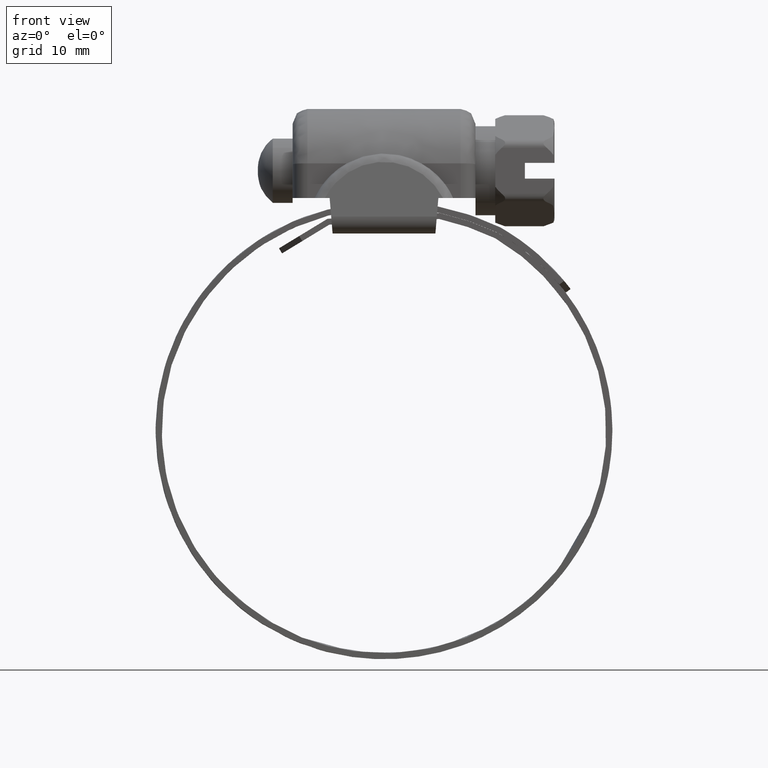
[diagram: clean part render]
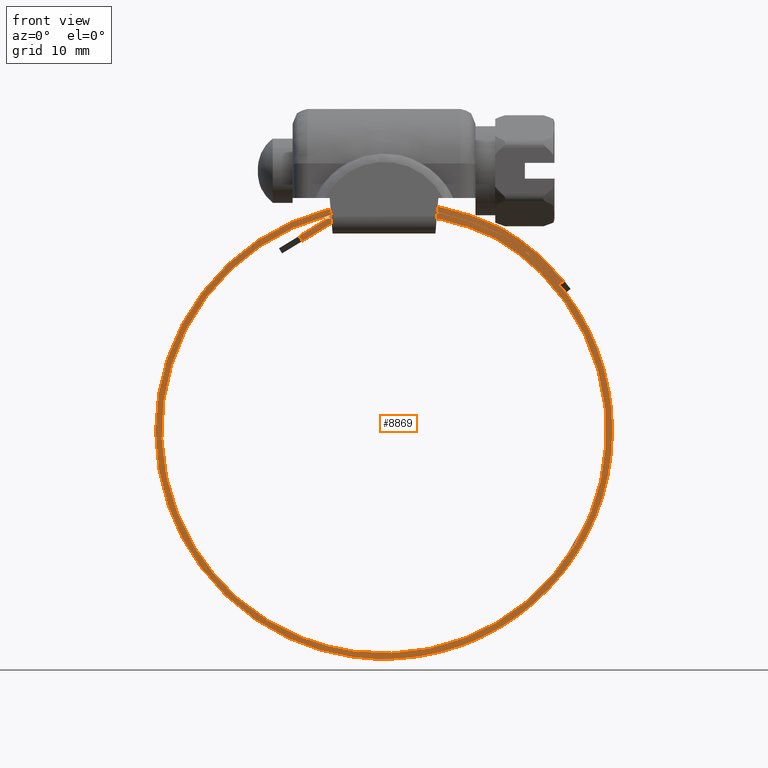
[diagram: same view with one face highlighted and labeled with its STEP entity id]
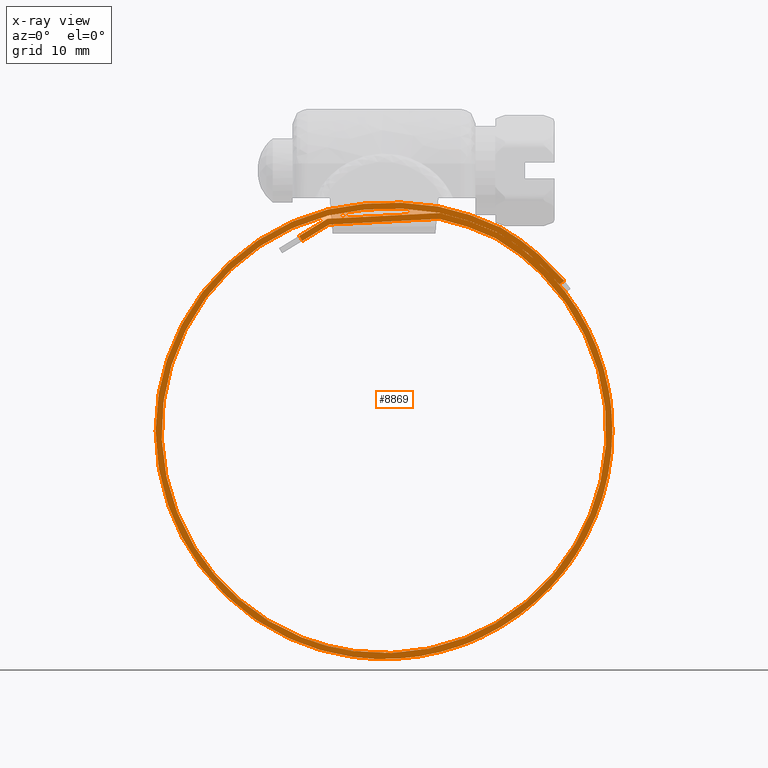
[diagram: x-ray of the same camera — body ghosted, the highlighted face saturated]
A machine part, front view. The second image highlights one B-rep face of the part: STEP entity #8869.
The next image is the same camera in x-ray: the body ghosted, the highlighted face saturated — about 0% of this face is hidden behind the body in this view.
In plain terms, the highlighted face is a freeform B-spline surface patch.
Its self-contained STEP definition (entity closure, byte-faithful):
#7183=CARTESIAN_POINT('',(-8.575713304426769,-6.499999999999821,9.227431194557898));
#7184=VERTEX_POINT('',#7183);
#7197=CARTESIAN_POINT('',(-8.263998013388409,-6.499999999999770,8.714758221471870));
#7198=VERTEX_POINT('',#7197);
#7204=CARTESIAN_POINT('',(-8.575713304426769,-6.499999999999821,9.227431194557898));
#7205=CARTESIAN_POINT('',(-8.263998013388409,-6.499999999999770,8.714758221471870));
#7206=QUASI_UNIFORM_CURVE('',1,(#7204,#7205),.UNSPECIFIED.,.F.,.U.);
#7207=EDGE_CURVE('',#7184,#7198,#7206,.T.);
#7238=CARTESIAN_POINT('',(-5.622523485148539,-6.499999999999840,11.302318436468919));
#7239=VERTEX_POINT('',#7238);
#7240=CARTESIAN_POINT('',(-3.039782627529023,-6.499999999999840,-32.778055056171148));
#7241=VERTEX_POINT('',#7240);
#7242=CARTESIAN_POINT('',(-5.622523485148539,-6.499999999999840,11.302318436468919));
#7243=CARTESIAN_POINT('',(-6.677032513801450,-6.499999999999853,11.030237351820640));
#7244=CARTESIAN_POINT('',(-8.516461340754061,-6.499999999999806,10.410001057006960));
#7245=CARTESIAN_POINT('',(-11.057657541828149,-6.499999999999904,9.169161250690676));
#7246=CARTESIAN_POINT('',(-13.405105348841641,-6.499999999999753,7.665009101022365));
#7247=CARTESIAN_POINT('',(-15.509925792639340,-6.500000000000044,5.895971794613858));
#7248=CARTESIAN_POINT('',(-17.213630698843591,-6.499999999999549,4.060376419060607));
#7249=CARTESIAN_POINT('',(-18.682259183548229,-6.500000000000054,2.133999013549105));
#7250=CARTESIAN_POINT('',(-19.916110606873939,-6.500000000000117,0.093274970699544));
#7251=CARTESIAN_POINT('',(-20.989351815635700,-6.499999999999194,-2.258205123547798));
#7252=CARTESIAN_POINT('',(-21.867930987184710,-6.500000000000211,-4.903706510145476));
#7253=CARTESIAN_POINT('',(-22.414617808876020,-6.499999999999687,-7.806094357712510));
#7254=CARTESIAN_POINT('',(-22.547473008275531,-6.499999999999917,-10.672285842825019));
#7255=CARTESIAN_POINT('',(-22.386215658596829,-6.499999999999753,-13.090163321110399));
#7256=CARTESIAN_POINT('',(-21.965660915622689,-6.499999999999989,-15.599247137691000));
#7257=CARTESIAN_POINT('',(-21.216902669099451,-6.499999999999726,-18.160684447832210));
#7258=CARTESIAN_POINT('',(-19.950605268386472,-6.499999999999845,-21.046771313225388));
#7259=CARTESIAN_POINT('',(-18.419579445822428,-6.500000000000224,-23.525661730775159));
#7260=CARTESIAN_POINT('',(-16.727124991773671,-6.499999999999677,-25.585533152284590));
#7261=CARTESIAN_POINT('',(-14.873154439189060,-6.499999999999976,-27.442766663469381));
#7262=CARTESIAN_POINT('',(-12.645000242532390,-6.499999999999702,-29.190857019091229));
#7263=CARTESIAN_POINT('',(-9.943646720583901,-6.499999999999925,-30.737619319368331));
#7264=CARTESIAN_POINT('',(-6.805181591407070,-6.499999999999882,-32.031293810275102));
#7265=CARTESIAN_POINT('',(-4.478564566545557,-6.499999999999658,-32.582060493662382));
#7266=CARTESIAN_POINT('',(-3.039782627529023,-6.499999999999840,-32.778055056171148));
#7267=B_SPLINE_CURVE_WITH_KNOTS('',3,(#7242,#7243,#7244,#7245,#7246,#7247,#7248,#7249,#7250,#7251,#7252,#7253,#7254,#7255,#7256,#7257,#7258,#7259,#7260,#7261,#7262,#7263,#7264,#7265,#7266),.UNSPECIFIED.,.F.,.U.,(4,1,1,1,1,1,1,1,1,1,1,1,1,1,1,1,1,1,1,1,1,1,4),(0.000000031237683,3.267128337247414,5.808241923026941,8.470378931677445,11.616526356170240,14.036635826504750,15.972725081762210,18.876864785380800,21.175972311528241,23.717081927646380,27.226262769219751,30.009382928249380,32.308436374567592,34.486539733852510,37.632702350337532,40.294818435498136,43.924990276692057,46.345100261986218,48.281189111711853,51.790361674717083,54.815486454609037,57.598636460188096,61.954807041272758),.UNSPECIFIED.);
#7268=EDGE_CURVE('',#7239,#7241,#7267,.T.);
#7270=CARTESIAN_POINT('',(11.250000000000000,-6.499999999999840,9.001748558090050));
#7271=VERTEX_POINT('',#7270);
#7272=CARTESIAN_POINT('',(-3.039782627529023,-6.499999999999840,-32.778055056171148));
#7273=CARTESIAN_POINT('',(-1.760907654901265,-6.499999999999841,-32.952535993591738));
#7274=CARTESIAN_POINT('',(0.624759685584840,-6.499999999999841,-33.070477979452107));
#7275=CARTESIAN_POINT('',(3.840812692171333,-6.499999999999844,-32.717918517205433));
#7276=CARTESIAN_POINT('',(6.745941477448763,-6.499999999999821,-32.012371997404657));
#7277=CARTESIAN_POINT('',(9.276887977891771,-6.499999999999880,-31.046278971266901));
#7278=CARTESIAN_POINT('',(11.773951177307520,-6.499999999999787,-29.719727303606501));
#7279=CARTESIAN_POINT('',(13.699956271735600,-6.499999999999759,-28.383201858799069));
#7280=CARTESIAN_POINT('',(15.599716529888941,-6.499999999999819,-26.754172536777130));
#7281=CARTESIAN_POINT('',(17.047364668472571,-6.499999999999814,-25.230418198895631));
#7282=CARTESIAN_POINT('',(18.502971627993631,-6.499999999999726,-23.345585738177089));
#7283=CARTESIAN_POINT('',(19.517183825823931,-6.499999999999890,-21.740372352101499));
#7284=CARTESIAN_POINT('',(20.494917399358140,-6.499999999999882,-19.838047325630100));
#7285=CARTESIAN_POINT('',(21.199117479826860,-6.499999999999726,-18.118579599610449));
#7286=CARTESIAN_POINT('',(21.813935635679211,-6.499999999999860,-16.111743457262030));
#7287=CARTESIAN_POINT('',(22.271172768493742,-6.499999999999837,-13.979581841052660));
#7288=CARTESIAN_POINT('',(22.547194467166591,-6.499999999999844,-11.327118168138011));
#7289=CARTESIAN_POINT('',(22.470245967628092,-6.499999999999844,-8.295556429817843));
#7290=CARTESIAN_POINT('',(21.976824576867529,-6.499999999999838,-5.384842818715946));
#7291=CARTESIAN_POINT('',(21.168365702489609,-6.499999999999844,-2.717512551896015));
#7292=CARTESIAN_POINT('',(20.288179273643070,-6.499999999999837,-0.676930178039158));
#7293=CARTESIAN_POINT('',(19.240727521171319,-6.499999999999835,1.234289611740506));
#7294=CARTESIAN_POINT('',(18.009711126329520,-6.499999999999865,3.083315183625002));
#7295=CARTESIAN_POINT('',(16.186633764136410,-6.499999999999723,5.246390425627837));
#7296=CARTESIAN_POINT('',(13.902685987887899,-6.500000000000127,7.304070892240435));
#7297=CARTESIAN_POINT('',(12.123293531093880,-6.499999999999642,8.497593529294429));
#7298=CARTESIAN_POINT('',(11.250000000000000,-6.499999999999840,9.001748558090050));
#7299=B_SPLINE_CURVE_WITH_KNOTS('',3,(#7272,#7273,#7274,#7275,#7276,#7277,#7278,#7279,#7280,#7281,#7282,#7283,#7284,#7285,#7286,#7287,#7288,#7289,#7290,#7291,#7292,#7293,#7294,#7295,#7296,#7297,#7298),.UNSPECIFIED.,.F.,.U.,(4,1,1,1,1,1,1,1,1,1,1,1,1,1,1,1,1,1,1,1,1,1,1,1,4),(0.000000031051549,3.872150796626499,7.139309935755733,9.680431380178909,12.826580892101740,15.246691656052439,18.150831119538822,19.844908388069101,22.749051464708479,24.443115895075859,26.984235628273940,28.436315471595329,30.856410472156139,32.550440920749793,34.728566896575522,37.390672411195908,40.536819975446043,43.803980263052701,46.224094333753008,48.886216223948573,50.459298152798169,52.758394654139970,55.541518911314178,58.929687628137778,61.954807041273028),.UNSPECIFIED.);
#7300=EDGE_CURVE('',#7241,#7271,#7299,.T.);
#7489=CARTESIAN_POINT('',(5.587154204157729,-6.499999999999840,10.948625041578239));
#7490=VERTEX_POINT('',#7489);
#7491=CARTESIAN_POINT('',(11.250000000000000,-6.499999999999840,9.001748558090050));
#7492=CARTESIAN_POINT('',(10.489022128092980,-6.499999999999860,9.366734217866396));
#7493=CARTESIAN_POINT('',(8.642814593679995,-6.499999999999805,10.143462471539340));
#7494=CARTESIAN_POINT('',(6.717086143060210,-6.499999999999884,10.701840961784150));
#7495=CARTESIAN_POINT('',(5.587154204157729,-6.499999999999840,10.948625041578239));
#7496=B_SPLINE_CURVE_WITH_KNOTS('',3,(#7491,#7492,#7493,#7494,#7495),.UNSPECIFIED.,.F.,.U.,(4,1,4),(4.672973E-010,2.531940920450484,6.001637033685481),.UNSPECIFIED.);
#7497=EDGE_CURVE('',#7271,#7490,#7496,.T.);
#7523=CARTESIAN_POINT('',(-5.529999905731620,-6.499999999999840,10.377083057317220));
#7524=VERTEX_POINT('',#7523);
#7525=CARTESIAN_POINT('',(-5.529999905731620,-6.499999999999840,10.377083057317220));
#7526=CARTESIAN_POINT('',(5.587154204157729,-6.499999999999840,10.948625041578239));
#7527=QUASI_UNIFORM_CURVE('',1,(#7525,#7526),.UNSPECIFIED.,.F.,.U.);
#7528=EDGE_CURVE('',#7524,#7490,#7527,.T.);
#7563=CARTESIAN_POINT('',(-8.263998013388409,-6.499999999999770,8.714758221471870));
#7564=CARTESIAN_POINT('',(-5.529999905731620,-6.499999999999840,10.377083057317220));
#7565=QUASI_UNIFORM_CURVE('',1,(#7563,#7564),.UNSPECIFIED.,.F.,.U.);
#7566=EDGE_CURVE('',#7198,#7524,#7565,.T.);
#7603=CARTESIAN_POINT('',(-5.712191785269829,-6.499999999999840,10.968508822205539));
#7604=VERTEX_POINT('',#7603);
#7605=CARTESIAN_POINT('',(-5.712191785269829,-6.499999999999840,10.968508822205539));
#7606=CARTESIAN_POINT('',(-8.575713304426769,-6.499999999999821,9.227431194557898));
#7607=QUASI_UNIFORM_CURVE('',1,(#7605,#7606),.UNSPECIFIED.,.F.,.U.);
#7608=EDGE_CURVE('',#7604,#7184,#7607,.T.);
#7623=CARTESIAN_POINT('',(5.636181117751979,-6.499999999999840,11.551937953709359));
#7624=VERTEX_POINT('',#7623);
#7625=CARTESIAN_POINT('',(5.636181117751979,-6.499999999999840,11.551937953709359));
#7626=CARTESIAN_POINT('',(-5.712191785269829,-6.499999999999840,10.968508822205539));
#7627=QUASI_UNIFORM_CURVE('',1,(#7625,#7626),.UNSPECIFIED.,.F.,.U.);
#7628=EDGE_CURVE('',#7624,#7604,#7627,.T.);
#7660=CARTESIAN_POINT('',(11.530119279132240,-6.499999999999840,9.532828618046372));
#7661=VERTEX_POINT('',#7660);
#7662=CARTESIAN_POINT('',(11.530119279132240,-6.499999999999840,9.532828618046372));
#7663=CARTESIAN_POINT('',(10.650715267917960,-6.499999999999846,9.955562160979552));
#7664=CARTESIAN_POINT('',(8.724684167802803,-6.499999999999835,10.753418436172121));
#7665=CARTESIAN_POINT('',(6.717258319638925,-6.499999999999838,11.319274903314280));
#7666=CARTESIAN_POINT('',(5.636181117751979,-6.499999999999840,11.551937953709359));
#7667=B_SPLINE_CURVE_WITH_KNOTS('',3,(#7662,#7663,#7664,#7665,#7666),.UNSPECIFIED.,.F.,.U.,(4,1,4),(4.604441E-010,2.927198591488921,6.244685655434751),.UNSPECIFIED.);
#7668=EDGE_CURVE('',#7661,#7624,#7667,.T.);
#7715=CARTESIAN_POINT('',(-3.155262802816941,-6.499999999999840,-33.367834676289327));
#7716=VERTEX_POINT('',#7715);
#7717=CARTESIAN_POINT('',(-3.155262802816941,-6.499999999999840,-33.367834676289327));
#7718=CARTESIAN_POINT('',(-1.759245071911273,-6.499999999999854,-33.560460656890733));
#7719=CARTESIAN_POINT('',(0.361263710715695,-6.499999999999806,-33.656815460123518));
#7720=CARTESIAN_POINT('',(3.294781582754527,-6.499999999999874,-33.386847717958773));
#7721=CARTESIAN_POINT('',(5.332326301137863,-6.499999999999800,-32.992171227446178));
#7722=CARTESIAN_POINT('',(7.564317121857537,-6.499999999999842,-32.350002751599952));
#7723=CARTESIAN_POINT('',(9.687910965450813,-6.499999999999891,-31.509091501191200));
#7724=CARTESIAN_POINT('',(12.068049752289200,-6.499999999999751,-30.239296404402999));
#7725=CARTESIAN_POINT('',(14.085909833159491,-6.499999999999814,-28.849544113123290));
#7726=CARTESIAN_POINT('',(15.941129340528180,-6.499999999999967,-27.252382410612238));
#7727=CARTESIAN_POINT('',(17.777073653342470,-6.499999999999440,-25.332866251625230));
#7728=CARTESIAN_POINT('',(19.383257412882891,-6.499999999999977,-23.160345589817361));
#7729=CARTESIAN_POINT('',(20.930629900246821,-6.499999999999668,-20.412269400786531));
#7730=CARTESIAN_POINT('',(21.989028131654020,-6.500000000000165,-17.790172188562082));
#7731=CARTESIAN_POINT('',(22.674466344574729,-6.499999999999727,-15.094911742499230));
#7732=CARTESIAN_POINT('',(23.070000767285979,-6.499999999999903,-12.469057782847139));
#7733=CARTESIAN_POINT('',(23.156479192951711,-6.499999999999796,-9.686027563272926));
#7734=CARTESIAN_POINT('',(22.860360401847579,-6.499999999999911,-6.835948681753953));
#7735=CARTESIAN_POINT('',(22.209481009553802,-6.499999999999612,-3.876989839399466));
#7736=CARTESIAN_POINT('',(21.150856854793769,-6.499999999999937,-0.986919240063807));
#7737=CARTESIAN_POINT('',(19.659641752438269,-6.499999999999822,1.748088866420719));
#7738=CARTESIAN_POINT('',(17.953122011074331,-6.499999999999829,4.150832370738392));
#7739=CARTESIAN_POINT('',(15.954752127349890,-6.499999999999901,6.321682562593418));
#7740=CARTESIAN_POINT('',(13.711372370465289,-6.499999999999758,8.171127112763230));
#7741=CARTESIAN_POINT('',(12.212520447768370,-6.499999999999610,9.139762298229867));
#7742=CARTESIAN_POINT('',(11.530119279132240,-6.499999999999840,9.532828618046372));
#7743=B_SPLINE_CURVE_WITH_KNOTS('',3,(#7717,#7718,#7719,#7720,#7721,#7722,#7723,#7724,#7725,#7726,#7727,#7728,#7729,#7730,#7731,#7732,#7733,#7734,#7735,#7736,#7737,#7738,#7739,#7740,#7741,#7742),.UNSPECIFIED.,.F.,.U.,(4,1,1,1,1,1,1,1,1,1,1,1,1,1,1,1,1,1,1,1,1,1,1,4),(0.000000027463919,4.227702324445673,6.341570707915167,8.828474037335347,10.444962280792740,13.304907404697429,15.667462089607090,18.527402931297200,20.641271395956881,23.003819768591239,26.485489152094811,28.723711427680058,32.453992357183637,34.940910488610477,37.054767669646687,40.412088749180228,43.272034386468860,45.634585280746542,49.489287218801010,52.473575595363030,54.960464225905227,58.317786431931950,61.302070922625809,63.664606057474693),.UNSPECIFIED.);
#7744=EDGE_CURVE('',#7716,#7661,#7743,.T.);
#7746=CARTESIAN_POINT('',(-5.682911846103689,-6.499999999999840,11.906201461037179));
#7747=VERTEX_POINT('',#7746);
#7748=CARTESIAN_POINT('',(-5.682911846103689,-6.499999999999840,11.906201461037179));
#7749=CARTESIAN_POINT('',(-6.566746769196429,-6.499999999999838,11.681901511872701));
#7750=CARTESIAN_POINT('',(-8.268232536073279,-6.499999999999842,11.140999912899980));
#7751=CARTESIAN_POINT('',(-10.425499836428310,-6.499999999999839,10.168548407124939));
#7752=CARTESIAN_POINT('',(-12.660153539837500,-6.499999999999836,8.895908517823976));
#7753=CARTESIAN_POINT('',(-14.610549735141980,-6.499999999999859,7.479668005194490));
#7754=CARTESIAN_POINT('',(-16.529405610153031,-6.499999999999844,5.704584907141630));
#7755=CARTESIAN_POINT('',(-18.268076257384241,-6.499999999999838,3.751766886388677));
#7756=CARTESIAN_POINT('',(-19.919352430973870,-6.499999999999843,1.356799901250281));
#7757=CARTESIAN_POINT('',(-21.338696543304032,-6.499999999999841,-1.462765753459126));
#7758=CARTESIAN_POINT('',(-22.238748360750979,-6.499999999999837,-4.052608859491872));
#7759=CARTESIAN_POINT('',(-22.904067931853799,-6.499999999999841,-7.007536872009760));
#7760=CARTESIAN_POINT('',(-23.187625812309459,-6.499999999999838,-10.072276922416970));
#7761=CARTESIAN_POINT('',(-22.981872709856880,-6.499999999999846,-13.431517817599770));
#7762=CARTESIAN_POINT('',(-22.359907005182912,-6.499999999999830,-16.568633691514052));
#7763=CARTESIAN_POINT('',(-21.381873390875690,-6.499999999999867,-19.396447408117020));
#7764=CARTESIAN_POINT('',(-20.197097769768490,-6.499999999999787,-21.774604425692491));
#7765=CARTESIAN_POINT('',(-18.871173541309268,-6.500000000000028,-23.881277822381779));
#7766=CARTESIAN_POINT('',(-17.433016409846090,-6.499999999999774,-25.708815711521449));
#7767=CARTESIAN_POINT('',(-15.460076317757460,-6.499999999999881,-27.725763020799839));
#7768=CARTESIAN_POINT('',(-13.221514468512590,-6.499999999999790,-29.518693914433719));
#7769=CARTESIAN_POINT('',(-10.613647284388151,-6.499999999999899,-31.065429438276080));
#7770=CARTESIAN_POINT('',(-8.295423998168849,-6.499999999999829,-32.084667323370589));
#7771=CARTESIAN_POINT('',(-5.849532242256912,-6.499999999999510,-32.880709733427182));
#7772=CARTESIAN_POINT('',(-4.181756314425158,-6.500000000000531,-33.226344674859583));
#7773=CARTESIAN_POINT('',(-3.155262802816941,-6.499999999999840,-33.367834676289327));
#7774=B_SPLINE_CURVE_WITH_KNOTS('',3,(#7748,#7749,#7750,#7751,#7752,#7753,#7754,#7755,#7756,#7757,#7758,#7759,#7760,#7761,#7762,#7763,#7764,#7765,#7766,#7767,#7768,#7769,#7770,#7771,#7772,#7773),.UNSPECIFIED.,.F.,.U.,(4,1,1,1,1,1,1,1,1,1,1,1,1,1,1,1,1,1,1,1,1,1,1,4),(0.000000027636922,2.735556926833745,5.346808181553676,7.087645648249605,10.444962280794099,12.558833874154850,14.921390622836309,18.278711858003479,21.262999263188998,24.371627469004419,26.485489151828400,30.340173108331051,33.573098304674573,36.557385590591323,39.914719210689022,42.525960002505641,44.515480910578823,47.375420046152954,49.489287218156583,52.970952922141812,55.955237713755551,58.566490662282973,60.556014050288432,63.664606056605606),.UNSPECIFIED.);
#7775=EDGE_CURVE('',#7747,#7716,#7774,.T.);
#8560=CARTESIAN_POINT('',(17.740673625830549,-6.499999999999840,4.326425836708835));
#8561=VERTEX_POINT('',#8560);
#8568=CARTESIAN_POINT('',(18.221242858220950,-6.499999999999840,4.686983431351290));
#8569=VERTEX_POINT('',#8568);
#8575=CARTESIAN_POINT('',(18.221242858220950,-6.499999999999840,4.686983431351290));
#8576=CARTESIAN_POINT('',(17.740673625830549,-6.499999999999840,4.326425836708835));
#8577=QUASI_UNIFORM_CURVE('',1,(#8575,#8576),.UNSPECIFIED.,.F.,.U.);
#8578=EDGE_CURVE('',#8569,#8561,#8577,.T.);
#8791=CARTESIAN_POINT('',(-25.391328110707569,-6.499999999999799,14.916847837339240));
#8792=CARTESIAN_POINT('',(25.390009469051328,-6.499999999999799,14.916847837339240));
#8793=CARTESIAN_POINT('',(-25.391328110707569,-6.499999999999799,-35.867040584132553));
#8794=CARTESIAN_POINT('',(25.390009469051328,-6.499999999999799,-35.867040584132553));
#8795=B_SPLINE_SURFACE_WITH_KNOTS('',1,1,((#8791,#8793),(#8792,#8794)),.UNSPECIFIED.,.F.,.F.,.U.,(2,2),(2,2),(0.0,50.781337579758898),(0.0,50.783888421471787),.UNSPECIFIED.);
#8796=ORIENTED_EDGE('',*,*,#7608,.T.);
#8797=ORIENTED_EDGE('',*,*,#7207,.T.);
#8798=ORIENTED_EDGE('',*,*,#7566,.T.);
#8799=ORIENTED_EDGE('',*,*,#7528,.T.);
#8800=ORIENTED_EDGE('',*,*,#7497,.F.);
#8801=ORIENTED_EDGE('',*,*,#7300,.F.);
#8802=ORIENTED_EDGE('',*,*,#7268,.F.);
#8803=CARTESIAN_POINT('',(5.648248449040190,-6.499999999999840,11.559567490402561));
#8804=VERTEX_POINT('',#8803);
#8805=CARTESIAN_POINT('',(5.648248449040190,-6.499999999999840,11.559567490402561));
#8806=CARTESIAN_POINT('',(4.135828598999001,-6.499999999999867,11.833991270554110));
#8807=CARTESIAN_POINT('',(1.744752866072126,-6.499999999999806,12.067099081853920));
#8808=CARTESIAN_POINT('',(-2.041084647441291,-6.499999999999873,11.950734591259421));
#8809=CARTESIAN_POINT('',(-4.268268905256776,-6.499999999999747,11.612450247022590));
#8810=CARTESIAN_POINT('',(-5.622523485148539,-6.499999999999840,11.302318436468919));
#8811=B_SPLINE_CURVE_WITH_KNOTS('',3,(#8805,#8806,#8807,#8808,#8809,#8810),.UNSPECIFIED.,.F.,.U.,(4,1,1,4),(1.311648E-009,4.611320388713295,7.183012174036367,11.350933451449031),.UNSPECIFIED.);
#8812=EDGE_CURVE('',#8804,#7239,#8811,.T.);
#8813=ORIENTED_EDGE('',*,*,#8812,.F.);
#8814=CARTESIAN_POINT('',(11.534787568611300,-6.499999999999840,9.541679945752271));
#8815=VERTEX_POINT('',#8814);
#8816=CARTESIAN_POINT('',(11.534787568611300,-6.499999999999840,9.541679945752271));
#8817=CARTESIAN_POINT('',(10.802827192343960,-6.499999999999829,9.893536437489994));
#8818=CARTESIAN_POINT('',(8.887511842089905,-6.499999999999856,10.707968489300191));
#8819=CARTESIAN_POINT('',(6.886730952510479,-6.499999999999829,11.292551027367770));
#8820=CARTESIAN_POINT('',(5.648248449040190,-6.499999999999840,11.559567490402561));
#8821=B_SPLINE_CURVE_WITH_KNOTS('',3,(#8816,#8817,#8818,#8819,#8820),.UNSPECIFIED.,.F.,.U.,(4,1,4),(4.568328E-010,2.436418763886612,6.237227370507423),.UNSPECIFIED.);
#8822=EDGE_CURVE('',#8815,#8804,#8821,.T.);
#8823=ORIENTED_EDGE('',*,*,#8822,.F.);
#8824=CARTESIAN_POINT('',(17.740673625830549,-6.499999999999840,4.326425836708835));
#8825=CARTESIAN_POINT('',(16.951985710854821,-6.499999999999845,5.271271611033150));
#8826=CARTESIAN_POINT('',(15.044310681613300,-6.499999999999838,7.216891996471374));
#8827=CARTESIAN_POINT('',(12.822023342294480,-6.499999999999854,8.800434194578781));
#8828=CARTESIAN_POINT('',(11.534787568611300,-6.499999999999840,9.541679945752271));
#8829=B_SPLINE_CURVE_WITH_KNOTS('',3,(#8824,#8825,#8826,#8827,#8828),.UNSPECIFIED.,.F.,.U.,(4,1,4),(1.029704E-009,3.692266704487778,8.148440953545260),.UNSPECIFIED.);
#8830=EDGE_CURVE('',#8561,#8815,#8829,.T.);
#8831=ORIENTED_EDGE('',*,*,#8830,.F.);
#8832=ORIENTED_EDGE('',*,*,#8578,.F.);
#8833=CARTESIAN_POINT('',(11.814864077368000,-6.499999999999840,10.072759229565220));
#8834=VERTEX_POINT('',#8833);
#8835=CARTESIAN_POINT('',(18.221242858220950,-6.499999999999840,4.686983431351290));
#8836=CARTESIAN_POINT('',(17.464248002367889,-6.499999999999817,5.596286240981554));
#8837=CARTESIAN_POINT('',(16.088782676151350,-6.499999999999877,7.016993411993418));
#8838=CARTESIAN_POINT('',(13.899846662055101,-6.499999999999817,8.775828859264625));
#8839=CARTESIAN_POINT('',(12.536733066400030,-6.499999999999869,9.657890812016005));
#8840=CARTESIAN_POINT('',(11.814864077368000,-6.499999999999840,10.072759229565220));
#8841=B_SPLINE_CURVE_WITH_KNOTS('',3,(#8835,#8836,#8837,#8838,#8839,#8840),.UNSPECIFIED.,.F.,.U.,(4,1,1,4),(8.784333E-010,3.549477470405221,5.915789237519681,8.413568198443604),.UNSPECIFIED.);
#8842=EDGE_CURVE('',#8569,#8834,#8841,.T.);
#8843=ORIENTED_EDGE('',*,*,#8842,.T.);
#8844=CARTESIAN_POINT('',(5.474209029354239,-6.499999999999840,12.209111048944139));
#8845=VERTEX_POINT('',#8844);
#8846=CARTESIAN_POINT('',(11.814864077368000,-6.499999999999840,10.072759229565220));
#8847=CARTESIAN_POINT('',(10.839117760276350,-6.499999999999856,10.542826396797549));
#8848=CARTESIAN_POINT('',(8.766309684500760,-6.499999999999809,11.392094511795280));
#8849=CARTESIAN_POINT('',(6.603937614784102,-6.499999999999861,11.978903842732411));
#8850=CARTESIAN_POINT('',(5.474209029354239,-6.499999999999840,12.209111048944139));
#8851=B_SPLINE_CURVE_WITH_KNOTS('',3,(#8846,#8847,#8848,#8849,#8850),.UNSPECIFIED.,.F.,.U.,(4,1,4),(5.292149E-010,3.249211913700887,6.708043967328729),.UNSPECIFIED.);
#8852=EDGE_CURVE('',#8834,#8845,#8851,.T.);
#8853=ORIENTED_EDGE('',*,*,#8852,.T.);
#8854=CARTESIAN_POINT('',(5.474209029354239,-6.499999999999840,12.209111048944139));
#8855=CARTESIAN_POINT('',(3.801316014099452,-6.499999999999847,12.490702685972710));
#8856=CARTESIAN_POINT('',(1.401165061370979,-6.499999999999867,12.680065534122379));
#8857=CARTESIAN_POINT('',(-2.341275396359274,-6.499999999999775,12.510354921375550));
#8858=CARTESIAN_POINT('',(-4.370197716830248,-6.499999999999885,12.201113113550379));
#8859=CARTESIAN_POINT('',(-5.682911846103689,-6.499999999999840,11.906201461037179));
#8860=B_SPLINE_CURVE_WITH_KNOTS('',3,(#8854,#8855,#8856,#8857,#8858,#8859),.UNSPECIFIED.,.F.,.U.,(4,1,1,4),(1.163826E-009,5.089235923440021,7.195122132224492,11.231413471481920),.UNSPECIFIED.);
#8861=EDGE_CURVE('',#8845,#7747,#8860,.T.);
#8862=ORIENTED_EDGE('',*,*,#8861,.T.);
#8863=ORIENTED_EDGE('',*,*,#7775,.T.);
#8864=ORIENTED_EDGE('',*,*,#7744,.T.);
#8865=ORIENTED_EDGE('',*,*,#7668,.T.);
#8866=ORIENTED_EDGE('',*,*,#7628,.T.);
#8867=EDGE_LOOP('',(#8796,#8797,#8798,#8799,#8800,#8801,#8802,#8813,#8823,#8831,#8832,#8843,#8853,#8862,#8863,#8864,#8865,#8866));
#8868=FACE_OUTER_BOUND('',#8867,.T.);
#8869=ADVANCED_FACE('',(#8868),#8795,.F.);